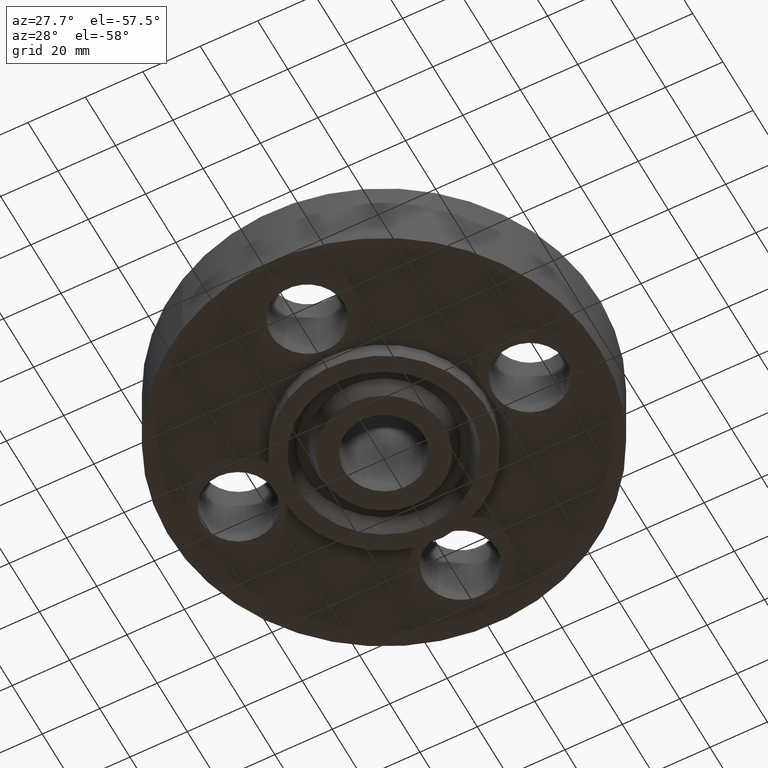
[diagram: clean part render]
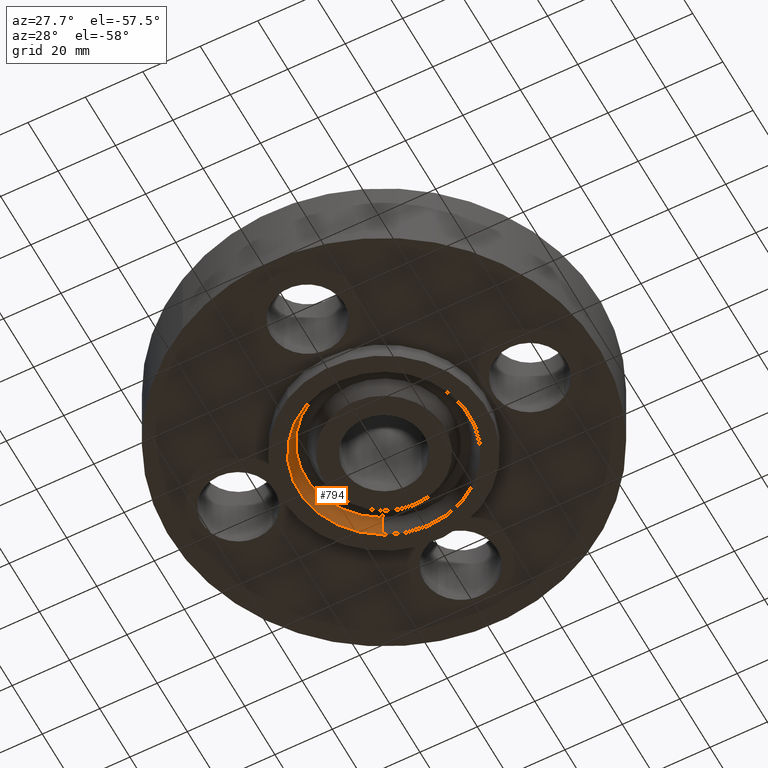
[diagram: same view with one face highlighted and labeled with its STEP entity id]
A machine part, auxiliary view. The second image highlights one B-rep face of the part: STEP entity #794.
In plain terms, the highlighted conical surface has half-angle 23 deg.
Its self-contained STEP definition (entity closure, byte-faithful):
#693=AXIS2_PLACEMENT_3D('Circle Axis2P3D',#691,#692,$) ;
#740=AXIS2_PLACEMENT_3D('Circle Axis2P3D',#738,#739,$) ;
#776=AXIS2_PLACEMENT_3D('Cone Axis2P3D',#773,#774,#775) ;
#691=CARTESIAN_POINT('Axis2P3D Location',(-1.39870617276E-016,-3.49676543189E-016,-0.250000000001)) ;
#695=CARTESIAN_POINT('Vertex',(0.561886731246,-1.02852676254,-0.250000000001)) ;
#697=CARTESIAN_POINT('Vertex',(-0.561886731246,1.02852676254,-0.250000000001)) ;
#738=CARTESIAN_POINT('Axis2P3D Location',(0.,0.,-0.0188873350169)) ;
#742=CARTESIAN_POINT('Vertex',(-0.514854363898,0.942434591585,-0.0188873350169)) ;
#744=CARTESIAN_POINT('Vertex',(0.514854363898,-0.942434591585,-0.0188873350169)) ;
#773=CARTESIAN_POINT('Axis2P3D Location',(0.,0.,-0.0188873350169)) ;
#778=CARTESIAN_POINT('Line Origine',(-0.538370547572,0.985480677062,-0.134443667509)) ;
#783=CARTESIAN_POINT('Line Origine',(0.538370547572,-0.985480677062,-0.134443667509)) ;
#692=DIRECTION('Axis2P3D Direction',(0.,0.,-0.0393700787402)) ;
#739=DIRECTION('Axis2P3D Direction',(0.,0.,0.0393700787402)) ;
#774=DIRECTION('Axis2P3D Direction',(-0.,-0.,-0.0393700787402)) ;
#775=DIRECTION('Axis2P3D XDirection',(-0.0188750212049,0.0345504945626,0.)) ;
#779=DIRECTION('Vector Direction',(-0.00737505833565,0.0134999537303,-0.0362403485611)) ;
#784=DIRECTION('Vector Direction',(0.00737505833565,-0.0134999537303,-0.0362403485611)) ;
#780=VECTOR('Line Direction',#779,0.0393700787402) ;
#785=VECTOR('Line Direction',#784,0.0393700787402) ;
#789=ORIENTED_EDGE('',*,*,#699,.T.) ;
#790=ORIENTED_EDGE('',*,*,#782,.T.) ;
#791=ORIENTED_EDGE('',*,*,#746,.T.) ;
#792=ORIENTED_EDGE('',*,*,#787,.F.) ;
#794=ADVANCED_FACE('PartBody',(#793),#777,.F.) ;
#694=CIRCLE('generated circle',#693,1.172) ;
#741=CIRCLE('generated circle',#740,1.07389849401) ;
#777=CONICAL_SURFACE('Cone',#776,1.07389849401,0.401425727959) ;
#699=EDGE_CURVE('',#696,#698,#694,.T.) ;
#746=EDGE_CURVE('',#743,#745,#741,.T.) ;
#782=EDGE_CURVE('',#698,#743,#781,.F.) ;
#787=EDGE_CURVE('',#696,#745,#786,.F.) ;
#788=EDGE_LOOP('',(#789,#790,#791,#792)) ;
#793=FACE_OUTER_BOUND('',#788,.T.) ;
#781=LINE('Line',#778,#780) ;
#786=LINE('Line',#783,#785) ;
#696=VERTEX_POINT('',#695) ;
#698=VERTEX_POINT('',#697) ;
#743=VERTEX_POINT('',#742) ;
#745=VERTEX_POINT('',#744) ;